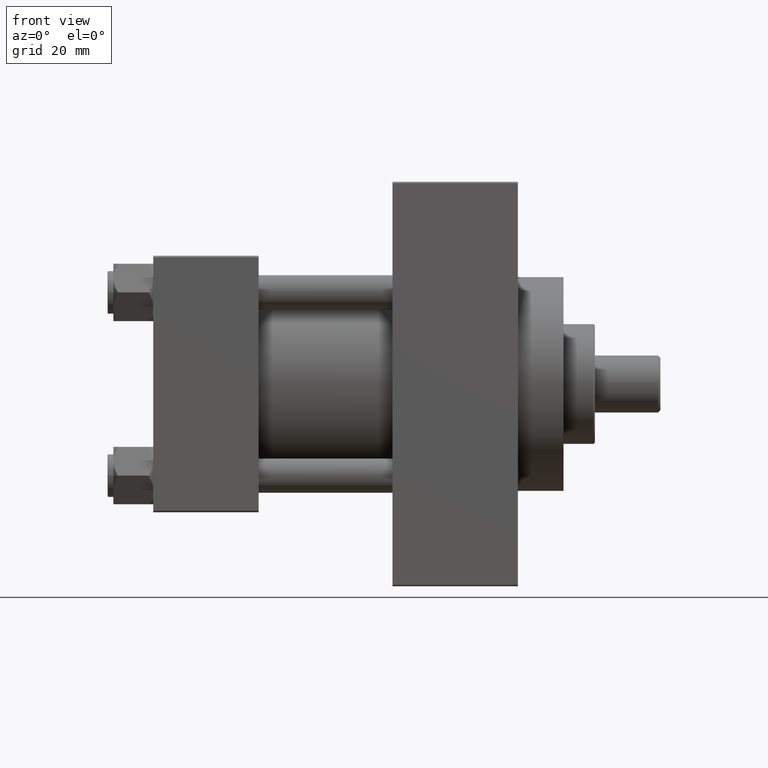
[diagram: clean part render]
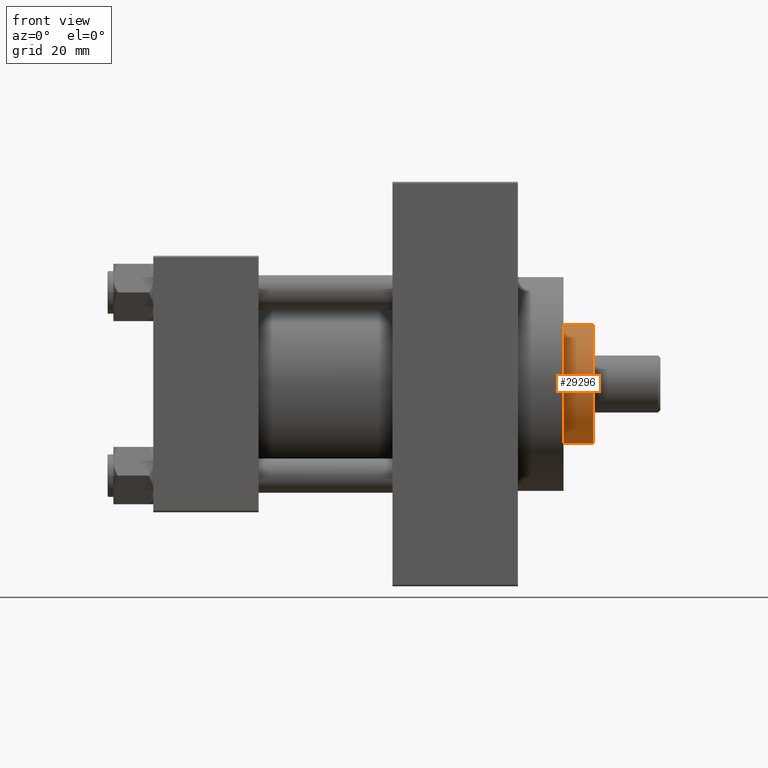
[diagram: same view with one face highlighted and labeled with its STEP entity id]
A machine part, front view. The second image highlights one B-rep face of the part: STEP entity #29296.
In plain terms, the highlighted cylindrical surface (partial cylindrical patch) has radius 21 mm, axis along (-1, 0, 0).
Its self-contained STEP definition (entity closure, byte-faithful):
#71 = VERTEX_POINT ( 'NONE', #15955 ) ;
#1148 = ORIENTED_EDGE ( 'NONE', *, *, #26302, .F. ) ;
#1707 = DIRECTION ( 'NONE',  ( 0.000000000000000000, 0.000000000000000000, -1.000000000000000000 ) ) ;
#2681 = CIRCLE ( 'NONE', #8083, 21.00000000000000000 ) ;
#3283 = DIRECTION ( 'NONE',  ( -0.000000000000000000, -0.000000000000000000, -1.000000000000000000 ) ) ;
#3328 = FACE_OUTER_BOUND ( 'NONE', #43204, .T. ) ;
#3537 = EDGE_CURVE ( 'NONE', #19312, #26547, #28069, .T. ) ;
#3738 = DIRECTION ( 'NONE',  ( 1.000000000000000000, 0.000000000000000000, 0.000000000000000000 ) ) ;
#6666 = ORIENTED_EDGE ( 'NONE', *, *, #3537, .T. ) ;
#7375 = CARTESIAN_POINT ( 'NONE',  ( -21.00000000000000000, 0.000000000000000000, 54.26000000000000512 ) ) ;
#7678 = DIRECTION ( 'NONE',  ( -0.000000000000000000, -0.000000000000000000, -1.000000000000000000 ) ) ;
#7892 = DIRECTION ( 'NONE',  ( -0.000000000000000000, -0.000000000000000000, -1.000000000000000000 ) ) ;
#8083 = AXIS2_PLACEMENT_3D ( 'NONE', #33155, #1707, #3738 ) ;
#8140 = LINE ( 'NONE', #40704, #27411 ) ;
#8364 = CYLINDRICAL_SURFACE ( 'NONE', #21936, 21.00000000000000000 ) ;
#10939 = DIRECTION ( 'NONE',  ( 0.000000000000000000, 0.000000000000000000, 1.000000000000000000 ) ) ;
#12208 = DIRECTION ( 'NONE',  ( -1.000000000000000000, 0.000000000000000000, 0.000000000000000000 ) ) ;
#15650 = VECTOR ( 'NONE', #3283, 1000.000000000000000 ) ;
#15955 = CARTESIAN_POINT ( 'NONE',  ( 21.00000000000000000, 2.571758278209441661E-15, 53.76000000000001933 ) ) ;
#19312 = VERTEX_POINT ( 'NONE', #46845 ) ;
#19694 = CARTESIAN_POINT ( 'NONE',  ( 0.000000000000000000, 0.000000000000000000, 54.26000000000000512 ) ) ;
#21936 = AXIS2_PLACEMENT_3D ( 'NONE', #19694, #7892, #12208 ) ;
#25026 = ORIENTED_EDGE ( 'NONE', *, *, #28776, .T. ) ;
#26302 = EDGE_CURVE ( 'NONE', #40183, #26547, #43309, .T. ) ;
#26547 = VERTEX_POINT ( 'NONE', #40112 ) ;
#27411 = VECTOR ( 'NONE', #7678, 1000.000000000000000 ) ;
#28069 = CIRCLE ( 'NONE', #33451, 21.00000000000000000 ) ;
#28776 = EDGE_CURVE ( 'NONE', #40183, #71, #2681, .T. ) ;
#29296 = ADVANCED_FACE ( 'NONE', ( #3328 ), #8364, .T. ) ;
#33155 = CARTESIAN_POINT ( 'NONE',  ( 0.000000000000000000, 0.000000000000000000, 53.76000000000001933 ) ) ;
#33451 = AXIS2_PLACEMENT_3D ( 'NONE', #37443, #10939, #36505 ) ;
#36092 = EDGE_CURVE ( 'NONE', #71, #19312, #8140, .T. ) ;
#36505 = DIRECTION ( 'NONE',  ( 1.000000000000000000, 0.000000000000000000, 0.000000000000000000 ) ) ;
#37443 = CARTESIAN_POINT ( 'NONE',  ( 0.000000000000000000, 0.000000000000000000, 43.25999999999999801 ) ) ;
#40112 = CARTESIAN_POINT ( 'NONE',  ( -21.00000000000000000, 0.000000000000000000, 43.25999999999999801 ) ) ;
#40183 = VERTEX_POINT ( 'NONE', #45712 ) ;
#40704 = CARTESIAN_POINT ( 'NONE',  ( 21.00000000000000000, 2.571758278209441661E-15, 54.26000000000000512 ) ) ;
#41197 = ORIENTED_EDGE ( 'NONE', *, *, #36092, .T. ) ;
#43204 = EDGE_LOOP ( 'NONE', ( #25026, #41197, #6666, #1148 ) ) ;
#43309 = LINE ( 'NONE', #7375, #15650 ) ;
#45712 = CARTESIAN_POINT ( 'NONE',  ( -21.00000000000000000, 0.000000000000000000, 53.76000000000001933 ) ) ;
#46845 = CARTESIAN_POINT ( 'NONE',  ( 21.00000000000000000, 2.571758278209441661E-15, 43.25999999999999801 ) ) ;